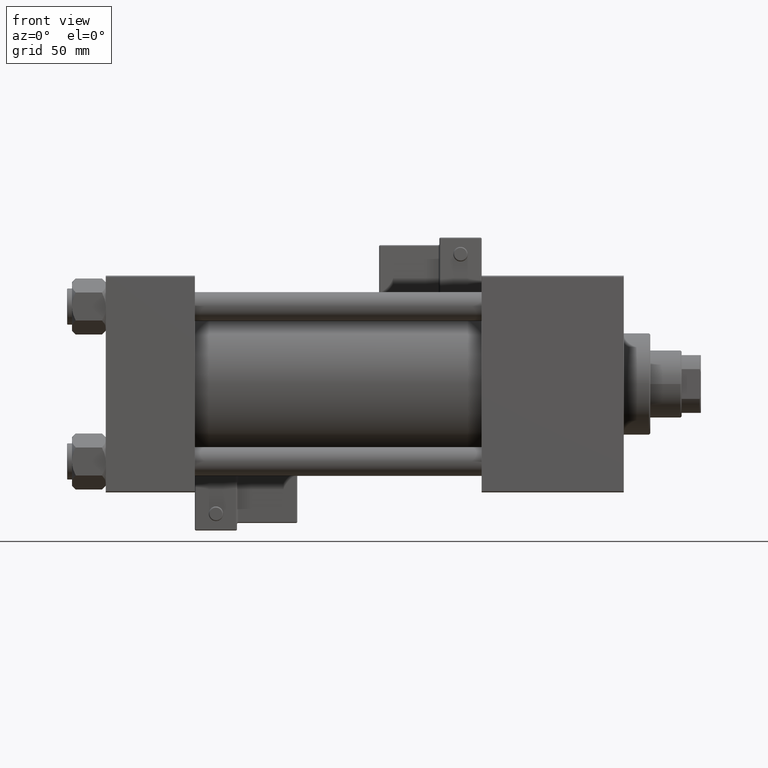
[diagram: clean part render]
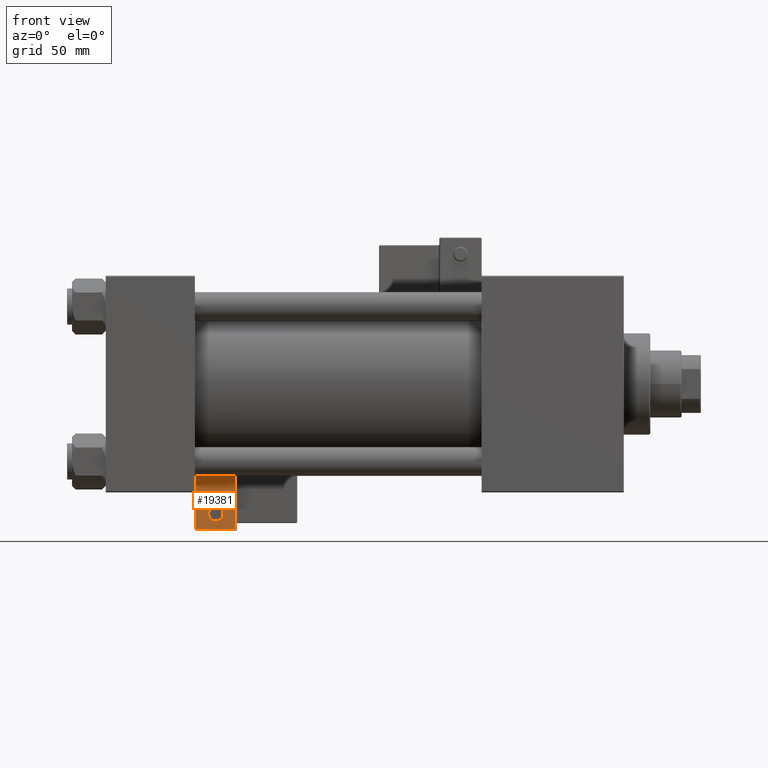
[diagram: same view with one face highlighted and labeled with its STEP entity id]
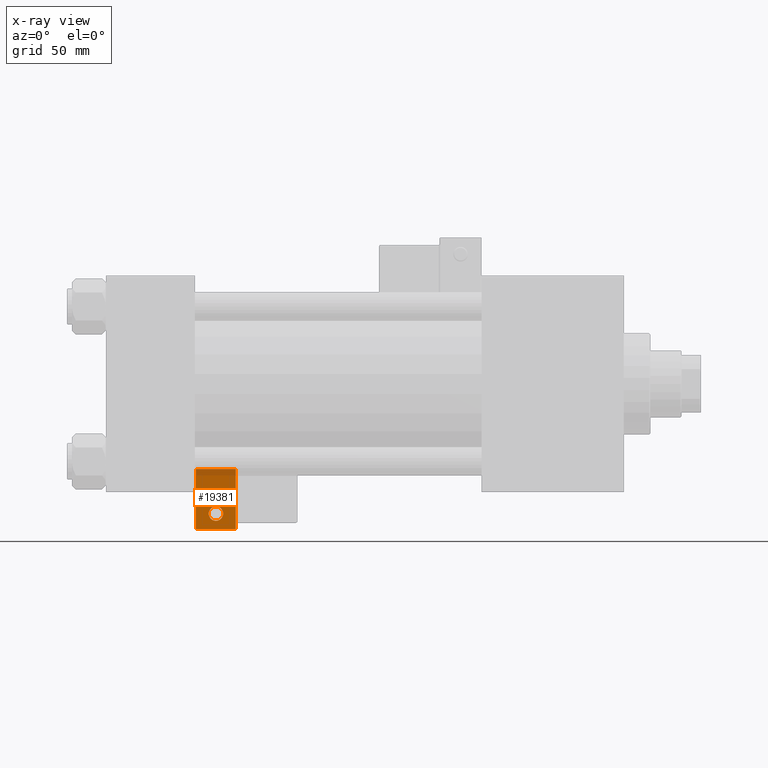
[diagram: x-ray of the same camera — body ghosted, the highlighted face saturated]
A machine part, front view. The second image highlights one B-rep face of the part: STEP entity #19381.
The next image is the same camera in x-ray: the body ghosted, the highlighted face saturated — about 12% of this face is hidden behind the body in this view.
In plain terms, the highlighted planar face has unit normal (0, 0.9994, 0.0353).
Its self-contained STEP definition (entity closure, byte-faithful):
#196 = DIRECTION ( 'NONE',  ( -0.000000000000000000, -1.000000000000000000, -0.000000000000000000 ) ) ;
#1434 = VECTOR ( 'NONE', #14211, 1000.000000000000000 ) ;
#1571 = DIRECTION ( 'NONE',  ( -1.334402673828313093E-16, 0.000000000000000000, -1.000000000000000000 ) ) ;
#4887 = FACE_OUTER_BOUND ( 'NONE', #12647, .T. ) ;
#5169 = AXIS2_PLACEMENT_3D ( 'NONE', #8360, #35655, #31694 ) ;
#5222 = AXIS2_PLACEMENT_3D ( 'NONE', #19572, #196, #11889 ) ;
#5583 = CARTESIAN_POINT ( 'NONE',  ( 8.250000000000000000, -39.75000000000000000, 24.50000000000000000 ) ) ;
#8125 = VECTOR ( 'NONE', #44638, 1000.000000000000000 ) ;
#8360 = CARTESIAN_POINT ( 'NONE',  ( -4.336808689942017736E-16, -39.75000000000000000, 6.000000000000001776 ) ) ;
#9974 = CARTESIAN_POINT ( 'NONE',  ( 8.250000000000003553, -39.75000000000000000, 1.100882205908358986E-15 ) ) ;
#10089 = VERTEX_POINT ( 'NONE', #41848 ) ;
#10758 = ORIENTED_EDGE ( 'NONE', *, *, #14862, .T. ) ;
#11526 = CARTESIAN_POINT ( 'NONE',  ( 0.000000000000000000, -39.75000000000000000, -0.5000000000000002220 ) ) ;
#11889 = DIRECTION ( 'NONE',  ( 0.000000000000000000, 0.000000000000000000, 1.000000000000000000 ) ) ;
#12647 = EDGE_LOOP ( 'NONE', ( #14562, #17354, #24698, #10758 ) ) ;
#12847 = CARTESIAN_POINT ( 'NONE',  ( 0.000000000000000000, -39.75000000000000000, 0.000000000000000000 ) ) ;
#14211 = DIRECTION ( 'NONE',  ( -1.334402673828313339E-16, 0.000000000000000000, 1.000000000000000000 ) ) ;
#14562 = ORIENTED_EDGE ( 'NONE', *, *, #23986, .T. ) ;
#14862 = EDGE_CURVE ( 'NONE', #10089, #31857, #30114, .T. ) ;
#15509 = VECTOR ( 'NONE', #1571, 1000.000000000000000 ) ;
#16307 = PLANE ( 'NONE',  #34912 ) ;
#17354 = ORIENTED_EDGE ( 'NONE', *, *, #21091, .T. ) ;
#17673 = ORIENTED_EDGE ( 'NONE', *, *, #42411, .F. ) ;
#18180 = DIRECTION ( 'NONE',  ( -1.000000000000000000, 0.000000000000000000, 1.982541115402065110E-16 ) ) ;
#18182 = VECTOR ( 'NONE', #18180, 1000.000000000000000 ) ;
#18571 = VERTEX_POINT ( 'NONE', #42273 ) ;
#19381 = ADVANCED_FACE ( 'NONE', ( #4887, #49166 ), #16307, .F. ) ;
#19572 = CARTESIAN_POINT ( 'NONE',  ( -4.336808689942017736E-16, -39.75000000000000000, 6.000000000000001776 ) ) ;
#20960 = VERTEX_POINT ( 'NONE', #42716 ) ;
#21063 = DIRECTION ( 'NONE',  ( 0.000000000000000000, -0.000000000000000000, 1.000000000000000000 ) ) ;
#21091 = EDGE_CURVE ( 'NONE', #20960, #24772, #21732, .T. ) ;
#21312 = CIRCLE ( 'NONE', #5222, 2.999999999999999112 ) ;
#21732 = LINE ( 'NONE', #29170, #15509 ) ;
#23708 = VERTEX_POINT ( 'NONE', #36205 ) ;
#23986 = EDGE_CURVE ( 'NONE', #31857, #20960, #34590, .T. ) ;
#24698 = ORIENTED_EDGE ( 'NONE', *, *, #27813, .T. ) ;
#24772 = VERTEX_POINT ( 'NONE', #25843 ) ;
#25843 = CARTESIAN_POINT ( 'NONE',  ( -8.250000000000003553, -39.75000000000000000, -0.5000000000000002220 ) ) ;
#26647 = CARTESIAN_POINT ( 'NONE',  ( 4.857225732735059864E-15, -39.75000000000000000, 24.50000000000000000 ) ) ;
#27813 = EDGE_CURVE ( 'NONE', #24772, #10089, #40389, .T. ) ;
#28235 = DIRECTION ( 'NONE',  ( 0.000000000000000000, 1.000000000000000000, 0.000000000000000000 ) ) ;
#29170 = CARTESIAN_POINT ( 'NONE',  ( -8.250000000000003553, -39.75000000000000000, 1.100882205908358788E-15 ) ) ;
#30114 = LINE ( 'NONE', #9974, #1434 ) ;
#31694 = DIRECTION ( 'NONE',  ( 0.000000000000000000, 0.000000000000000000, 1.000000000000000000 ) ) ;
#31857 = VERTEX_POINT ( 'NONE', #5583 ) ;
#34590 = LINE ( 'NONE', #26647, #18182 ) ;
#34912 = AXIS2_PLACEMENT_3D ( 'NONE', #12847, #28235, #21063 ) ;
#35655 = DIRECTION ( 'NONE',  ( -0.000000000000000000, -1.000000000000000000, -0.000000000000000000 ) ) ;
#36205 = CARTESIAN_POINT ( 'NONE',  ( -6.628682924999581145E-17, -39.75000000000000000, 3.000000000000001776 ) ) ;
#37325 = CIRCLE ( 'NONE', #5169, 2.999999999999999112 ) ;
#40389 = LINE ( 'NONE', #11526, #8125 ) ;
#40656 = EDGE_LOOP ( 'NONE', ( #17673, #52124 ) ) ;
#41848 = CARTESIAN_POINT ( 'NONE',  ( 8.250000000000003553, -39.75000000000000000, -0.5000000000000002220 ) ) ;
#42273 = CARTESIAN_POINT ( 'NONE',  ( -4.336808689942017736E-16, -39.75000000000000000, 9.000000000000001776 ) ) ;
#42411 = EDGE_CURVE ( 'NONE', #18571, #23708, #37325, .T. ) ;
#42716 = CARTESIAN_POINT ( 'NONE',  ( -8.250000000000000000, -39.75000000000000000, 24.50000000000000355 ) ) ;
#44415 = EDGE_CURVE ( 'NONE', #23708, #18571, #21312, .T. ) ;
#44638 = DIRECTION ( 'NONE',  ( 1.000000000000000000, 0.000000000000000000, 0.000000000000000000 ) ) ;
#49166 = FACE_BOUND ( 'NONE', #40656, .T. ) ;
#52124 = ORIENTED_EDGE ( 'NONE', *, *, #44415, .F. ) ;